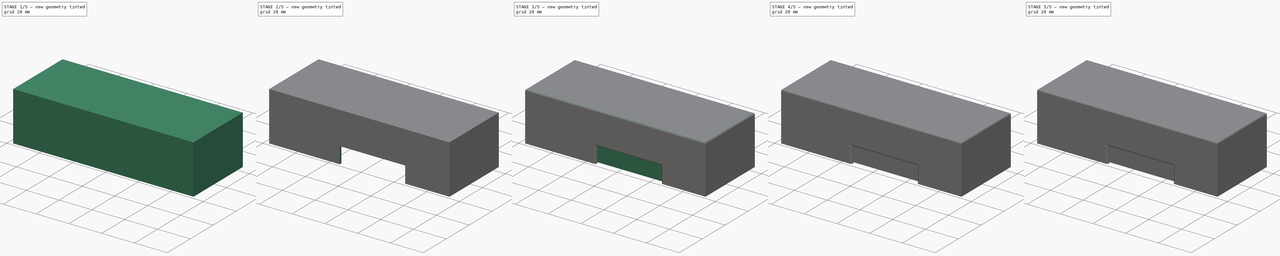
[diagram: build sequence overview — one tinted view per stage of 5, left to right]
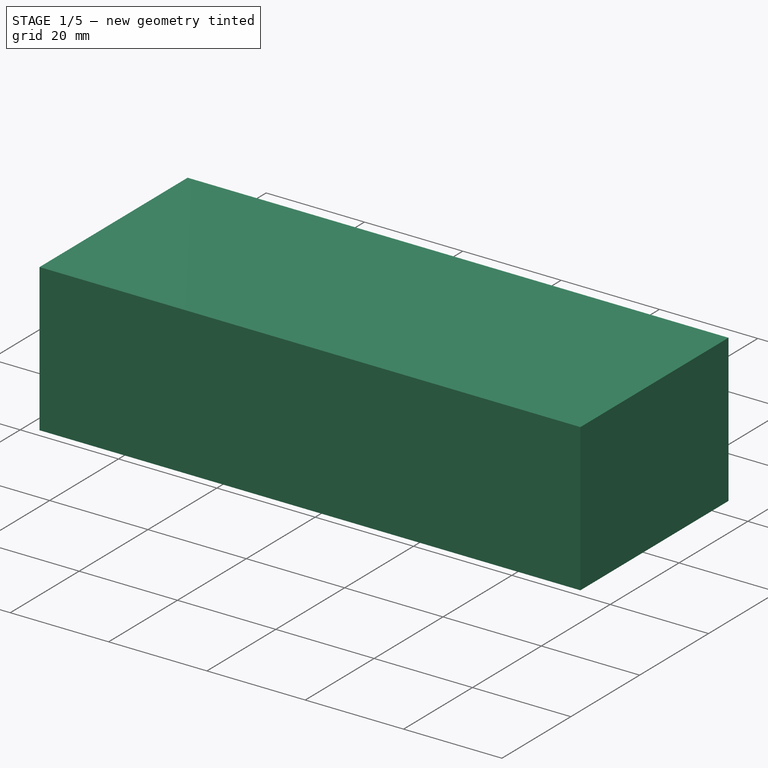
[diagram: stage 1 of 5 — iso view after this stage's code; geometry added in this stage tinted green]
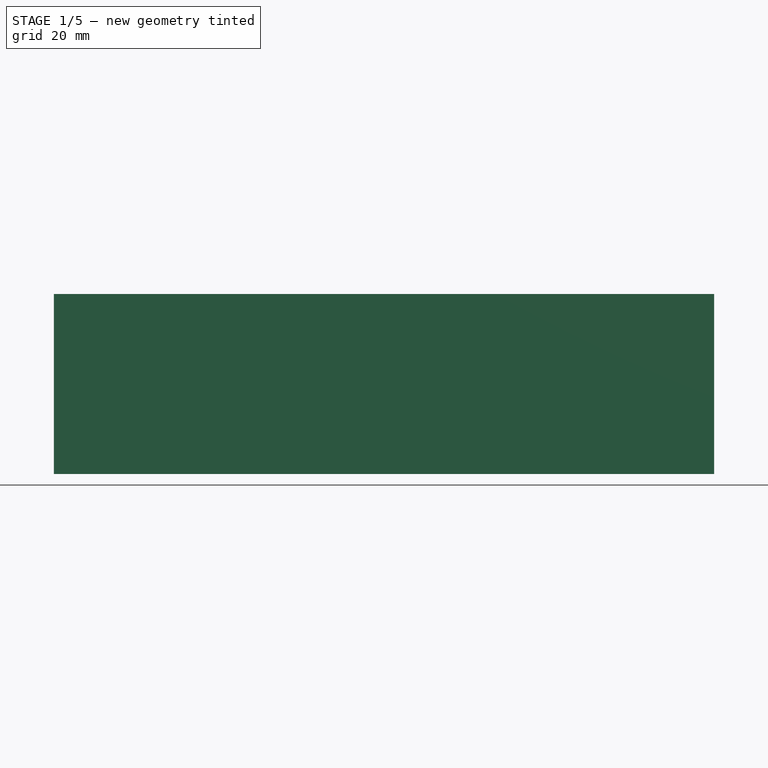
[diagram: stage 1 of 5 — front view after this stage's code; geometry added in this stage tinted green]
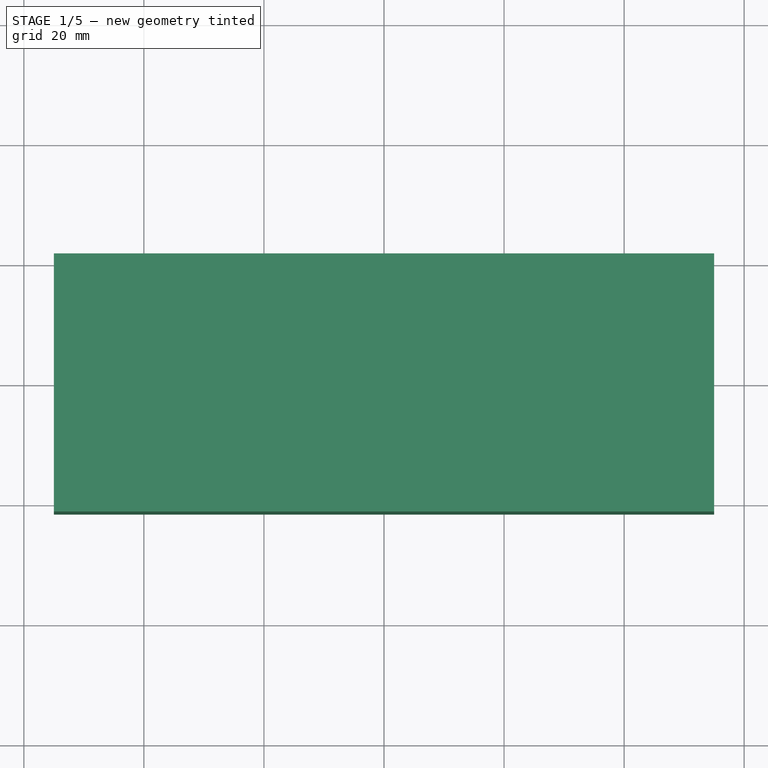
[diagram: stage 1 of 5 — top view after this stage's code; geometry added in this stage tinted green]
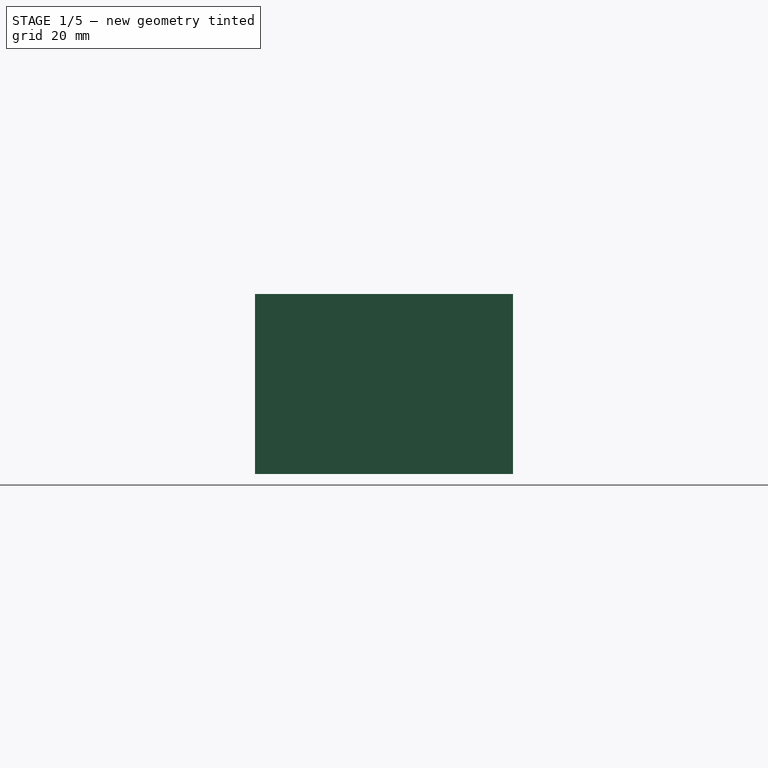
[diagram: stage 1 of 5 — right view after this stage's code; geometry added in this stage tinted green]
FCSTD DOCUMENT  (FreeCAD 0.19R24028 (Git))
Label: TBeam-Case
License: Creative Commons Attribution
LicenseURL: http://creativecommons.org/licenses/by/4.0/
objects: Sketcher::SketchObject×13, PartDesign::Pocket×8, PartDesign::Pad×5, PartDesign::Fillet×3, PartDesign::Body×2, PartDesign::Chamfer×1
note: 49 computed .brp shape members not serialized (recipe doc carries the construction recipe); baked Part::Feature solids carry a one-line shape summary decoded from their .brp

FEATURE [PartDesign::Body] Body  label="LowerHalf"
  Group = -> [Sketch,Pad,Sketch001,Pocket,Sketch002,Pad001,Sketch003,Pocket001,Sketch004,Pocket002,Sketch005,Pocket003,Sketch006,Pocket004,Fillet]
  Origin = -> Origin
  Placement = pos=(0,0,-14) rot=(0,0,1;0rad)
  Tip = -> Fillet
FEATURE [Sketcher::SketchObject] Sketch007
  FullyConstrained = true
  MapMode = 5
  Support = -> [XY_Plane001]
  sketch-geometry (4):
    g0: LineSegment StartX=-55 StartY=21.5 StartZ=0 EndX=55 EndY=21.5 EndZ=0
    g1: LineSegment StartX=55 StartY=21.5 StartZ=0 EndX=55 EndY=-21.5 EndZ=0
    g2: LineSegment StartX=55 StartY=-21.5 StartZ=0 EndX=-55 EndY=-21.5 EndZ=0
    g3: LineSegment StartX=-55 StartY=-21.5 StartZ=0 EndX=-55 EndY=21.5 EndZ=0
  constraints (11):
    c: Coincident(g0,g1)
    c: Coincident(g1,g2)
    c: Coincident(g2,g3)
    c: Coincident(g3,g0)
    c: Horizontal(g0)
    c: Horizontal(g2)
    c: Vertical(g1)
    c: Vertical(g3)
    c: Distance(g0) = 110
    c: Distance(g3) = 43
    c: Symmetric(g0,g1,g-1)
FEATURE [PartDesign::Pad] Pad002
  Direction = (1,1,1)
  Length = 30
  Length2 = 100
  Profile = -> Sketch007
  Type = 0
FEATURE [Sketcher::SketchObject] Sketch008
  ExternalGeometry = -> [Pad002]
  FullyConstrained = true
  MapMode = 5
  Placement = pos=(0,0,0) rot=(1,0,0;3.14159rad)
  Support = -> [Pad002]
  sketch-geometry (4):
    g0: LineSegment StartX=-53.5 StartY=20 StartZ=0 EndX=53.5 EndY=20 EndZ=0
    g1: LineSegment StartX=53.5 StartY=20 StartZ=0 EndX=53.5 EndY=-20 EndZ=0
    g2: LineSegment StartX=53.5 StartY=-20 StartZ=0 EndX=-53.5 EndY=-20 EndZ=0
    g3: LineSegment StartX=-53.5 StartY=-20 StartZ=0 EndX=-53.5 EndY=20 EndZ=0
  constraints (12):
    c: Coincident(g0,g1)
    c: Coincident(g1,g2)
    c: Coincident(g2,g3)
    c: Coincident(g3,g0)
    c: Horizontal(g0)
    c: Horizontal(g2)
    c: Vertical(g1)
    c: Vertical(g3)
    c: DistanceX(g0,g-4) = 1.5
    c: DistanceY(g0,g-4) = 1.5
    c: DistanceX(g-3,g2) = 1.5
    c: DistanceY(g-3,g2) = 1.5
FEATURE [PartDesign::Pocket] Pocket005
  BaseFeature = -> Pad002
  Length = 5
  Length2 = 100
  Offset = -1.5
  Profile = -> Sketch008
  Type = 2
FEATURE [Sketcher::SketchObject] Sketch009
  FullyConstrained = true
  MapMode = 5
  Placement = pos=(-53.5,0,0) rot=(0.57735,0.57735,0.57735;2.0944rad)
  Support = -> [Pocket005]
  sketch-geometry (4):
    g0: LineSegment StartX=-9 StartY=3 StartZ=0 EndX=9 EndY=3 EndZ=0
    g1: LineSegment StartX=9 StartY=3 StartZ=0 EndX=9 EndY=0 EndZ=0
    g2: LineSegment StartX=9 StartY=0 StartZ=0 EndX=-9 EndY=0 EndZ=0
    g3: LineSegment StartX=-9 StartY=0 StartZ=0 EndX=-9 EndY=3 EndZ=0
  constraints (11):
    c: Coincident(g0,g1)
    c: Coincident(g1,g2)
    c: Coincident(g2,g3)
    c: Coincident(g3,g0)
    c: Horizontal(g0)
    c: Vertical(g1)
    c: Vertical(g3)
    c: Distance(g0) = 18
    c: Distance(g1) = 3
    c: Symmetric(g2,g1,g-2)
    c: Horizontal(g2,g-1)
FEATURE [PartDesign::Pad] Pad003  label="Raste Rechts"
  BaseFeature = -> Pocket005
  Direction = (1,1,1)
  Length = 2
  Length2 = 100
  Profile = -> Sketch009
  Type = 0
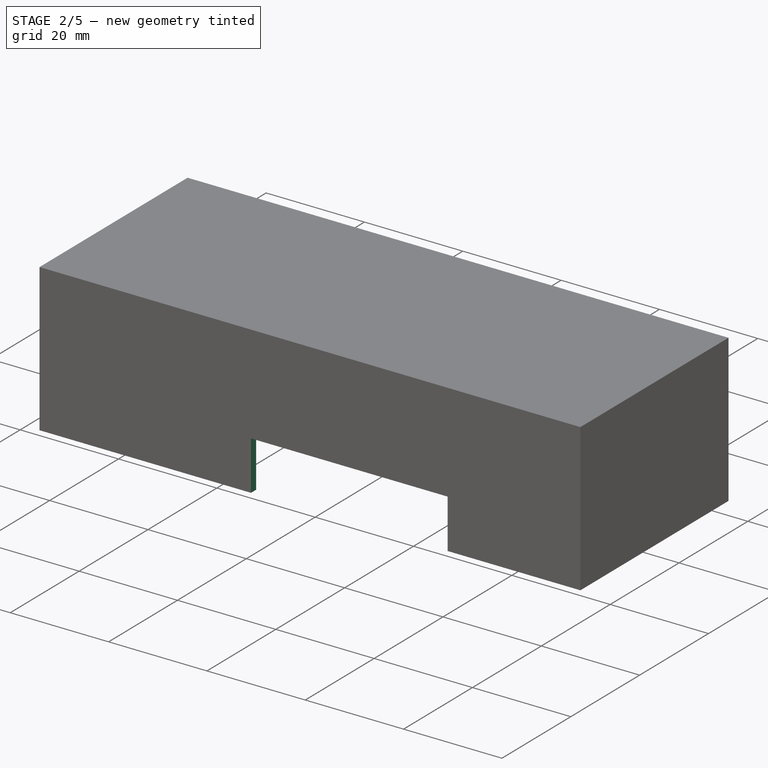
[diagram: stage 2 of 5 — iso view after this stage's code; geometry added in this stage tinted green]
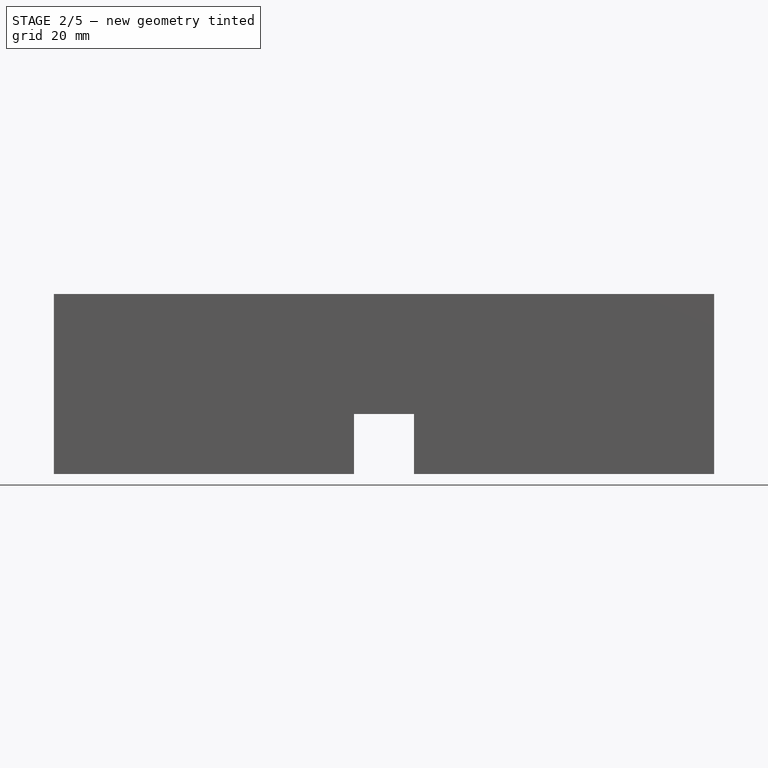
[diagram: stage 2 of 5 — front view after this stage's code; geometry added in this stage tinted green]
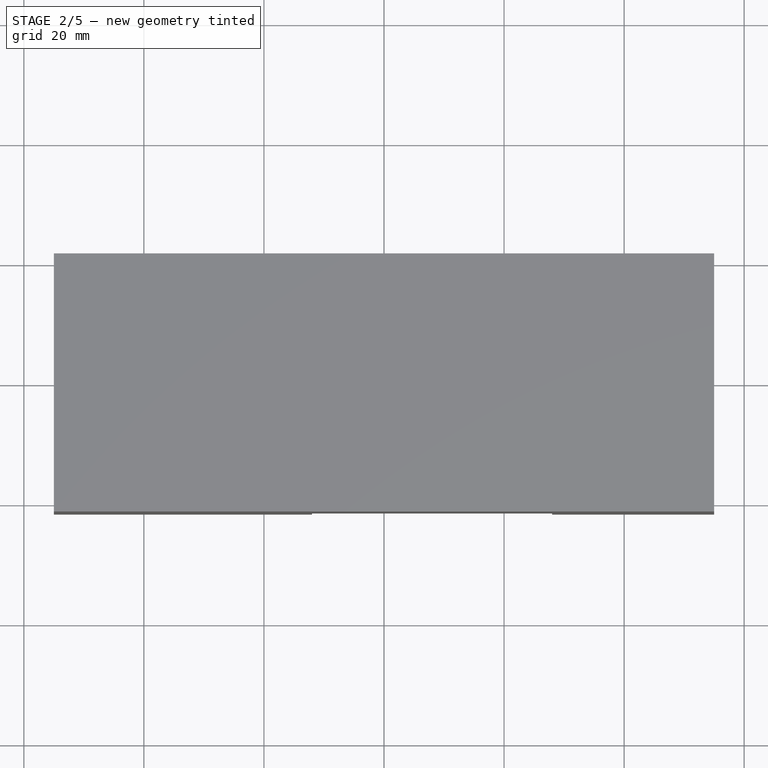
[diagram: stage 2 of 5 — top view after this stage's code; geometry added in this stage tinted green]
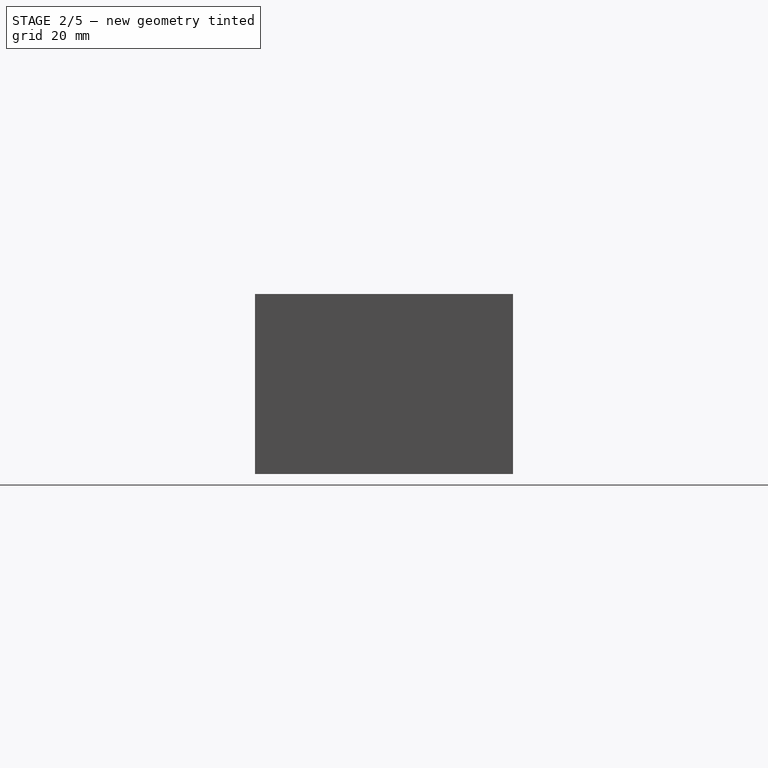
[diagram: stage 2 of 5 — right view after this stage's code; geometry added in this stage tinted green]
FEATURE [Sketcher::SketchObject] Sketch010
  FullyConstrained = true
  MapMode = 5
  Placement = pos=(53.5,0,0) rot=(0.57735,-0.57735,-0.57735;2.0944rad)
  Support = -> [Pad003]
  sketch-geometry (4):
    g0: LineSegment StartX=-9 StartY=0 StartZ=0 EndX=9 EndY=0 EndZ=0
    g1: LineSegment StartX=9 StartY=0 StartZ=0 EndX=9 EndY=3 EndZ=0
    g2: LineSegment StartX=9 StartY=3 StartZ=0 EndX=-9 EndY=3 EndZ=0
    g3: LineSegment StartX=-9 StartY=3 StartZ=0 EndX=-9 EndY=0 EndZ=0
  constraints (11):
    c: Coincident(g0,g1)
    c: Coincident(g1,g2)
    c: Coincident(g2,g3)
    c: Coincident(g3,g0)
    c: Horizontal(g2)
    c: Vertical(g1)
    c: Vertical(g3)
    c: Distance(g2) = 18
    c: Distance(g3) = 3
    c: Symmetric(g0,g0,g-2)
    c: Horizontal(g0,g-1)
FEATURE [PartDesign::Pad] Pad004  label="Raste Links"
  BaseFeature = -> Pad003
  Direction = (1,1,1)
  Length = 2
  Length2 = 100
  Profile = -> Sketch010
  Type = 0
FEATURE [Sketcher::SketchObject] Sketch011
  ExternalGeometry = -> [Pad004]
  FullyConstrained = true
  MapMode = 5
  Placement = pos=(0,-21.5,0) rot=(1,0,0;1.5708rad)
  Support = -> [Pad004]
  sketch-geometry (4):
    g0: LineSegment StartX=-12 StartY=10 StartZ=0 EndX=28 EndY=10 EndZ=0
    g1: LineSegment StartX=28 StartY=10 StartZ=0 EndX=28 EndY=0 EndZ=0
    g2: LineSegment StartX=28 StartY=0 StartZ=0 EndX=-12 EndY=0 EndZ=0
    g3: LineSegment StartX=-12 StartY=0 StartZ=0 EndX=-12 EndY=10 EndZ=0
  constraints (12):
    c: Coincident(g0,g1)
    c: Coincident(g1,g2)
    c: Coincident(g2,g3)
    c: Coincident(g3,g0)
    c: Horizontal(g0)
    c: Horizontal(g2)
    c: Vertical(g1)
    c: Vertical(g3)
    c: Distance(g0) = 40
    c: PointOnObject(g2,g-1)
    c: Distance(g1) = 10
    c: DistanceX(g1,g-3) = 27
FEATURE [PartDesign::Pocket] Pocket006  label="USB Loch"
  BaseFeature = -> Pad004
  Length = 5
  Length2 = 100
  Profile = -> Sketch011
  Type = 2
FEATURE [Sketcher::SketchObject] Sketch012
  ExternalGeometry = -> [Pocket006]
  FullyConstrained = true
  MapMode = 5
  Placement = pos=(0,21.5,0) rot=(0,0.707107,0.707107;3.14159rad)
  Support = -> [Pocket006]
  sketch-geometry (4):
    g0: LineSegment StartX=-5 StartY=0 StartZ=0 EndX=5 EndY=0 EndZ=0
    g1: LineSegment StartX=5 StartY=0 StartZ=0 EndX=5 EndY=20 EndZ=0
    g2: LineSegment StartX=5 StartY=20 StartZ=0 EndX=-5 EndY=20 EndZ=0
    g3: LineSegment StartX=-5 StartY=20 StartZ=0 EndX=-5 EndY=0 EndZ=0
  constraints (11):
    c: Coincident(g0,g1)
    c: Coincident(g1,g2)
    c: Coincident(g2,g3)
    c: Coincident(g3,g0)
    c: Horizontal(g2)
    c: Vertical(g1)
    c: Vertical(g3)
    c: PointOnObject(g0,g-1)
    c: DistanceY(g1,g-3) = 10
    c: Distance(g2) = 10
    c: Symmetric(g0,g0,g-2)
FEATURE [PartDesign::Pocket] Pocket007  label="Antennenloch"
  BaseFeature = -> Pocket006
  Length = 5
  Length2 = 100
  Profile = -> Sketch012
  Type = 2
FEATURE [PartDesign::Chamfer] Chamfer
  Angle = 45
  Base = -> Pocket007 [Edge63,Edge54]
  BaseFeature = -> Pocket007
  ChamferType = 0
  FlipDirection = false
  Size = 1.5
  Size2 = 1
  SupportTransform = false
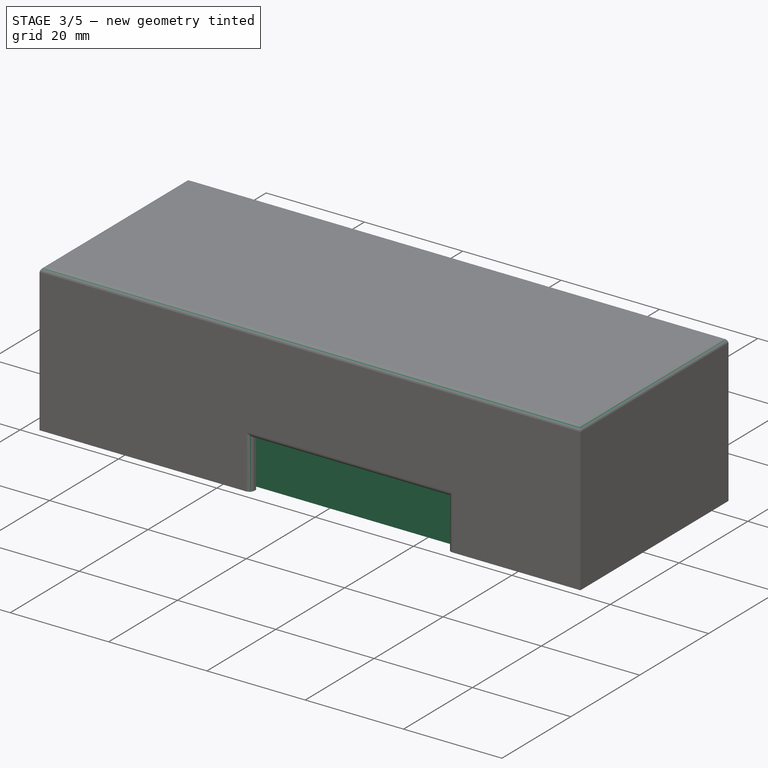
[diagram: stage 3 of 5 — iso view after this stage's code; geometry added in this stage tinted green]
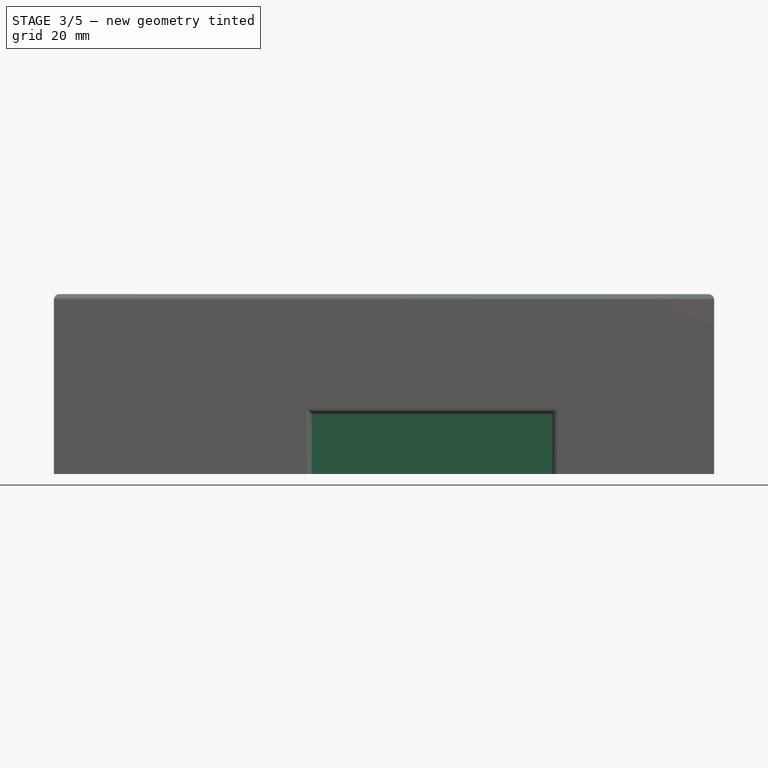
[diagram: stage 3 of 5 — front view after this stage's code; geometry added in this stage tinted green]
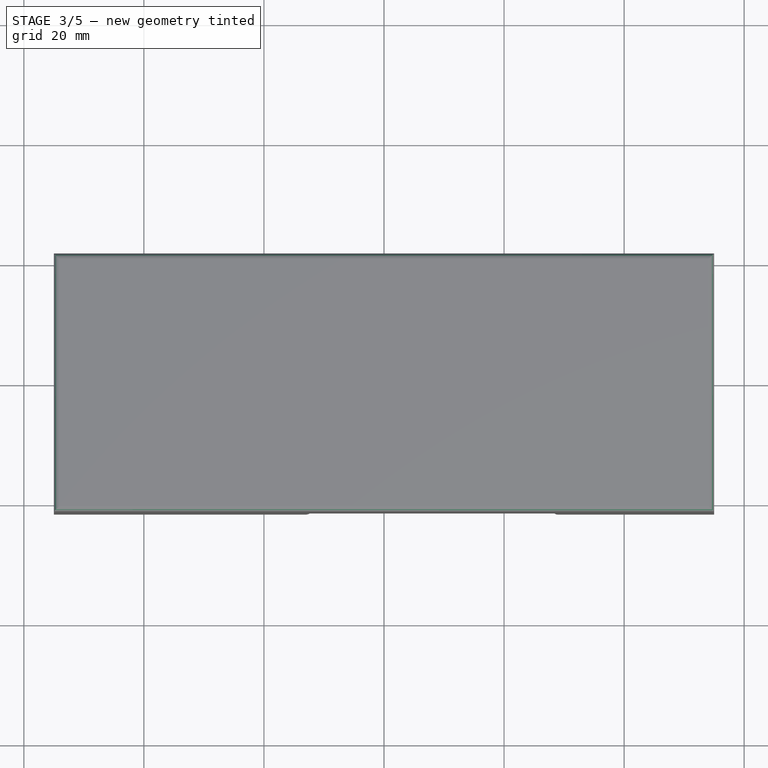
[diagram: stage 3 of 5 — top view after this stage's code; geometry added in this stage tinted green]
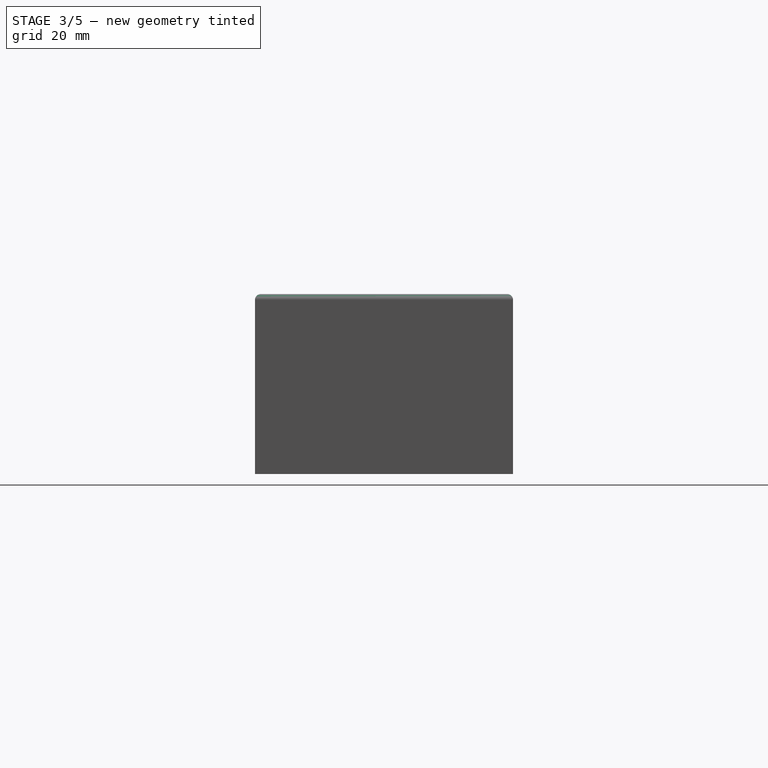
[diagram: stage 3 of 5 — right view after this stage's code; geometry added in this stage tinted green]
FEATURE [Sketcher::SketchObject] Sketch
  FullyConstrained = true
  MapMode = 5
  Support = -> [XY_Plane]
  sketch-geometry (4):
    g0: LineSegment StartX=-52.5 StartY=19 StartZ=0 EndX=52.5 EndY=19 EndZ=0
    g1: LineSegment StartX=52.5 StartY=19 StartZ=0 EndX=52.5 EndY=-19 EndZ=0
    g2: LineSegment StartX=52.5 StartY=-19 StartZ=0 EndX=-52.5 EndY=-19 EndZ=0
    g3: LineSegment StartX=-52.5 StartY=-19 StartZ=0 EndX=-52.5 EndY=19 EndZ=0
  constraints (11):
    c: Coincident(g0,g1)
    c: Coincident(g1,g2)
    c: Coincident(g2,g3)
    c: Coincident(g3,g0)
    c: Horizontal(g0)
    c: Horizontal(g2)
    c: Vertical(g1)
    c: Vertical(g3)
    c: Distance(g1) = 38
    c: Distance(g0) = 105
    c: Symmetric(g0,g1,g-1)
FEATURE [PartDesign::Pad] Pad
  Direction = (1,1,1)
  Length = 25
  Length2 = 100
  Profile = -> Sketch
  Type = 0
FEATURE [PartDesign::Fillet] Fillet001
  Base = -> Chamfer [Face20]
  BaseFeature = -> Chamfer
  Radius = 1
  SupportTransform = false
FEATURE [PartDesign::Fillet] Fillet002
  Base = -> Fillet001 [Edge7,Edge8,Edge5]
  BaseFeature = -> Fillet001
  Radius = 1
  SupportTransform = false
FEATURE [PartDesign::Body] Body001  label="UpperHalf"
  Group = -> [Sketch007,Pad002,Sketch008,Pocket005,Sketch009,Pad003,Sketch010,Pad004,Sketch011,Pocket006,Sketch012,Pocket007,Chamfer,Fillet001,Fillet002]
  Origin = -> Origin001
  Tip = -> Fillet002
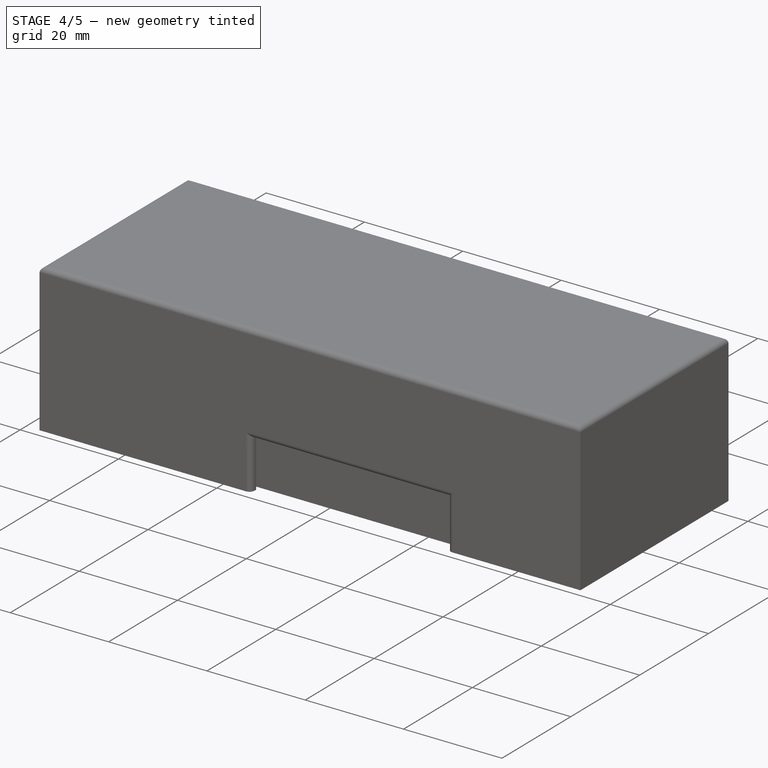
[diagram: stage 4 of 5 — iso view after this stage's code; geometry added in this stage tinted green]
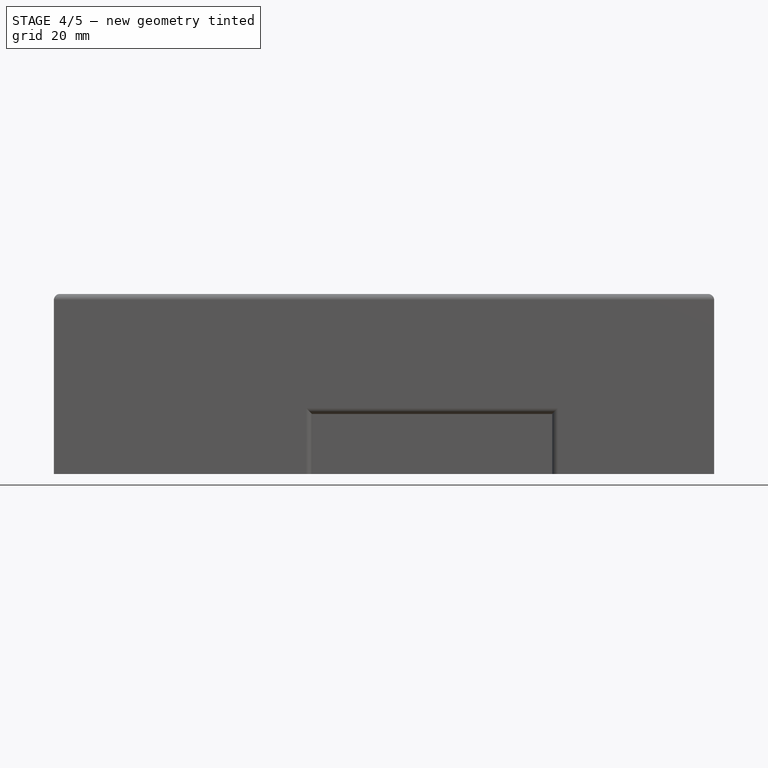
[diagram: stage 4 of 5 — front view after this stage's code; geometry added in this stage tinted green]
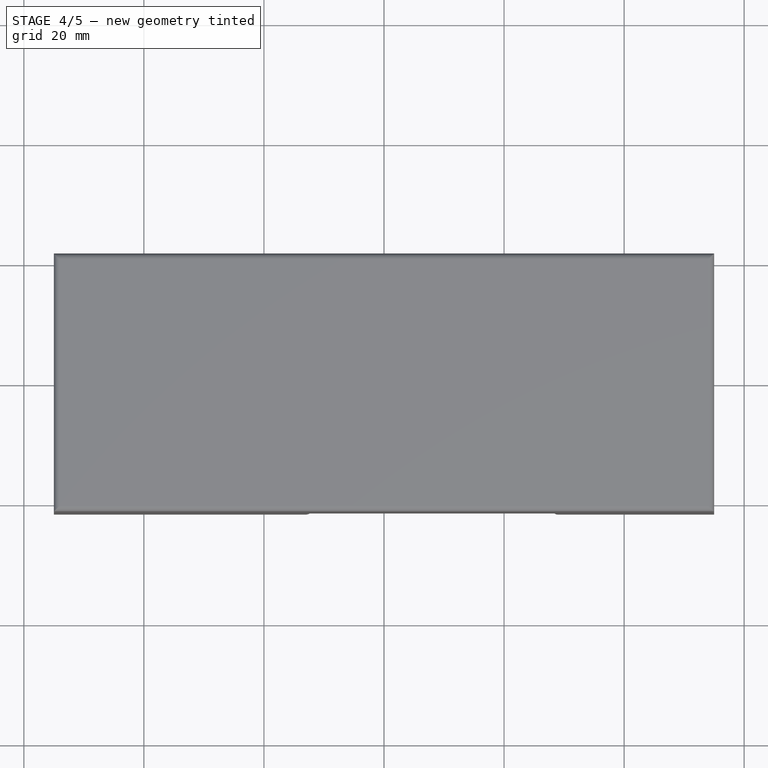
[diagram: stage 4 of 5 — top view after this stage's code; geometry added in this stage tinted green]
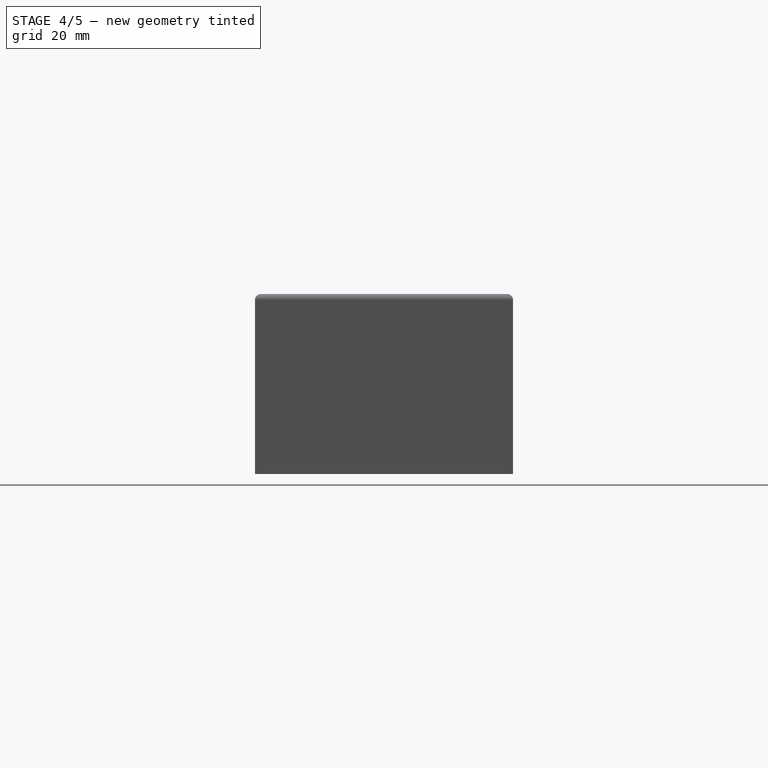
[diagram: stage 4 of 5 — right view after this stage's code; geometry added in this stage tinted green]
FEATURE [Sketcher::SketchObject] Sketch001
  ExternalGeometry = -> [Pad]
  FullyConstrained = true
  MapMode = 5
  Placement = pos=(0,0,25) rot=(0,0,1;0rad)
  Support = -> [Pad]
  sketch-geometry (4):
    g0: LineSegment StartX=-51 StartY=17.5 StartZ=0 EndX=51 EndY=17.5 EndZ=0
    g1: LineSegment StartX=51 StartY=17.5 StartZ=0 EndX=51 EndY=-17.5 EndZ=0
    g2: LineSegment StartX=51 StartY=-17.5 StartZ=0 EndX=-51 EndY=-17.5 EndZ=0
    g3: LineSegment StartX=-51 StartY=-17.5 StartZ=0 EndX=-51 EndY=17.5 EndZ=0
  constraints (14):
    c: Coincident(g0,g1)
    c: Coincident(g1,g2)
    c: Coincident(g2,g3)
    c: Coincident(g3,g0)
    c: Horizontal(g0)
    c: Horizontal(g2)
    c: Vertical(g1)
    c: Vertical(g3)
    c: DistanceX(g0,g-4) = 1.5
    c: DistanceY(g0,g-4) = 1.5
    c: DistanceX(g-3,g2) = 1.5
    c: DistanceY(g-3,g2) = 1.5
    c: Distance(g0) = 102
    c: Distance(g1) = 35
FEATURE [PartDesign::Pocket] Pocket
  BaseFeature = -> Pad
  Length = 5
  Length2 = 100
  Offset = -1.5
  Profile = -> Sketch001
  Type = 2
FEATURE [Sketcher::SketchObject] Sketch002
  ExternalGeometry = -> [Pocket]
  FullyConstrained = true
  MapMode = 5
  Placement = pos=(0,0,1.5) rot=(0,0,1;0rad)
  Support = -> [Pocket]
  sketch-geometry (8):
    g0: LineSegment StartX=-42.5 StartY=12.5 StartZ=0 EndX=-41 EndY=12.5 EndZ=0
    g1: LineSegment StartX=-41 StartY=12.5 StartZ=0 EndX=-41 EndY=-12.5 EndZ=0
    g2: LineSegment StartX=-41 StartY=-12.5 StartZ=0 EndX=-42.5 EndY=-12.5 EndZ=0
    g3: LineSegment StartX=-42.5 StartY=-12.5 StartZ=0 EndX=-42.5 EndY=12.5 EndZ=0
    g4: LineSegment StartX=41 StartY=12.5 StartZ=0 EndX=42.5 EndY=12.5 EndZ=0
    g5: LineSegment StartX=42.5 StartY=12.5 StartZ=0 EndX=42.5 EndY=-12.5 EndZ=0
    g6: LineSegment StartX=42.5 StartY=-12.5 StartZ=0 EndX=41 EndY=-12.5 EndZ=0
    g7: LineSegment StartX=41 StartY=-12.5 StartZ=0 EndX=41 EndY=12.5 EndZ=0
  constraints (22):
    c: Coincident(g0,g1)
    c: Coincident(g1,g2)
    c: Coincident(g2,g3)
    c: Coincident(g3,g0)
    c: Horizontal(g0)
    c: Horizontal(g2)
    c: Vertical(g3)
    c: Coincident(g4,g5)
    c: Coincident(g5,g6)
    c: Coincident(g6,g7)
    c: Coincident(g7,g4)
    c: Horizontal(g4)
    c: Horizontal(g6)
    c: Vertical(g5)
    c: Distance(g0) = 1.5
    c: Distance(g4) = 1.5
    c: Distance(g1) = 25
    c: Distance(g5) = 25
    c: DistanceX(g4,g-4) = 10
    c: DistanceX(g-3,g0) = 10
    c: Symmetric(g1,g0,g-1)
    c: Symmetric(g4,g6,g-1)
FEATURE [PartDesign::Pad] Pad001
  BaseFeature = -> Pocket
  Direction = (1,1,1)
  Length = 15
  Length2 = 100
  Profile = -> Sketch002
  Type = 0
FEATURE [Sketcher::SketchObject] Sketch003
  ExternalGeometry = -> [Pad001]
  FullyConstrained = true
  MapMode = 5
  Placement = pos=(0,19,0) rot=(0,0.707107,0.707107;3.14159rad)
  Support = -> [Pad001]
  sketch-geometry (4):
    g0: LineSegment StartX=-5 StartY=25 StartZ=0 EndX=5 EndY=25 EndZ=0
    g1: LineSegment StartX=5 StartY=25 StartZ=0 EndX=5 EndY=20 EndZ=0
    g2: LineSegment StartX=5 StartY=20 StartZ=0 EndX=-5 EndY=20 EndZ=0
    g3: LineSegment StartX=-5 StartY=20 StartZ=0 EndX=-5 EndY=25 EndZ=0
  constraints (11):
    c: Coincident(g0,g1)
    c: Coincident(g1,g2)
    c: Coincident(g2,g3)
    c: Coincident(g3,g0)
    c: Horizontal(g2)
    c: Vertical(g1)
    c: Vertical(g3)
    c: Distance(g2) = 10
    c: PointOnObject(g0,g-3)
    c: Symmetric(g0,g0,g-2)
    c: DistanceY(g-1,g2) = 20
FEATURE [PartDesign::Pocket] Pocket001  label="Loch Antenne"
  BaseFeature = -> Pad001
  Length = 5
  Length2 = 100
  Profile = -> Sketch003
  Type = 2
FEATURE [Sketcher::SketchObject] Sketch004
  ExternalGeometry = -> [Pocket001]
  FullyConstrained = true
  MapMode = 5
  Placement = pos=(0,-19,0) rot=(1,0,0;1.5708rad)
  Support = -> [Pocket001]
  sketch-geometry (4):
    g0: LineSegment StartX=-12.5 StartY=25 StartZ=0 EndX=27.5 EndY=25 EndZ=0
    g1: LineSegment StartX=27.5 StartY=25 StartZ=0 EndX=27.5 EndY=20 EndZ=0
    g2: LineSegment StartX=27.5 StartY=20 StartZ=0 EndX=-12.5 EndY=20 EndZ=0
    g3: LineSegment StartX=-12.5 StartY=20 StartZ=0 EndX=-12.5 EndY=25 EndZ=0
  constraints (12):
    c: Coincident(g0,g1)
    c: Coincident(g1,g2)
    c: Horizontal(g0)
    c: Horizontal(g2)
    c: Vertical(g1)
    c: Distance(g2) = 40
    c: Horizontal(g0,g-3)
    c: DistanceX(g0,g-3) = 25
    c: Distance(g1) = 5
    c: Vertical(g3)
    c: Coincident(g2,g3)
    c: Coincident(g0,g3)
FEATURE [PartDesign::Pocket] Pocket002  label="USB-Loch"
  BaseFeature = -> Pocket001
  Length = 5
  Length2 = 100
  Profile = -> Sketch004
  Type = 2
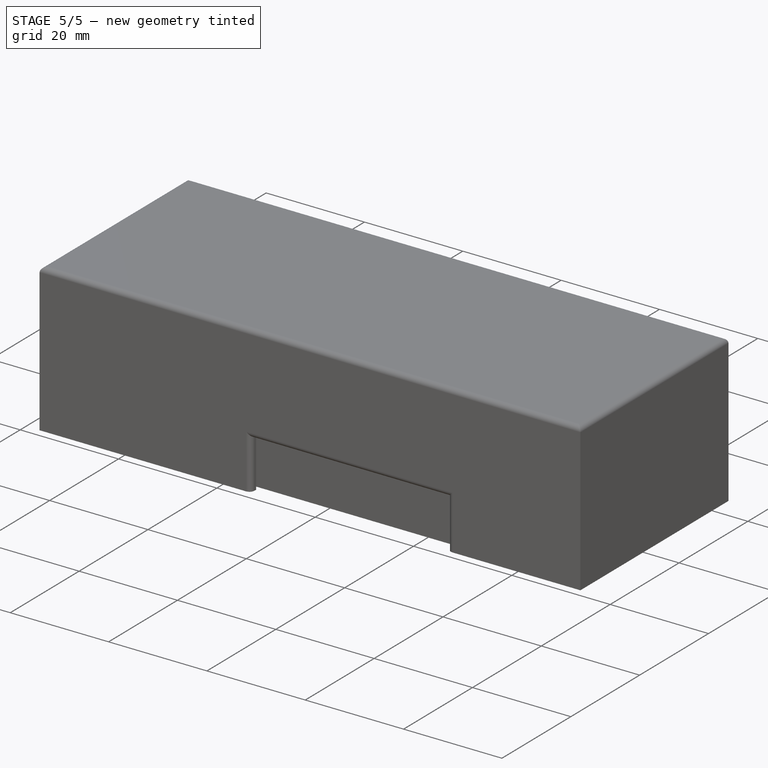
[diagram: stage 5 of 5 — iso view after this stage's code; geometry added in this stage tinted green]
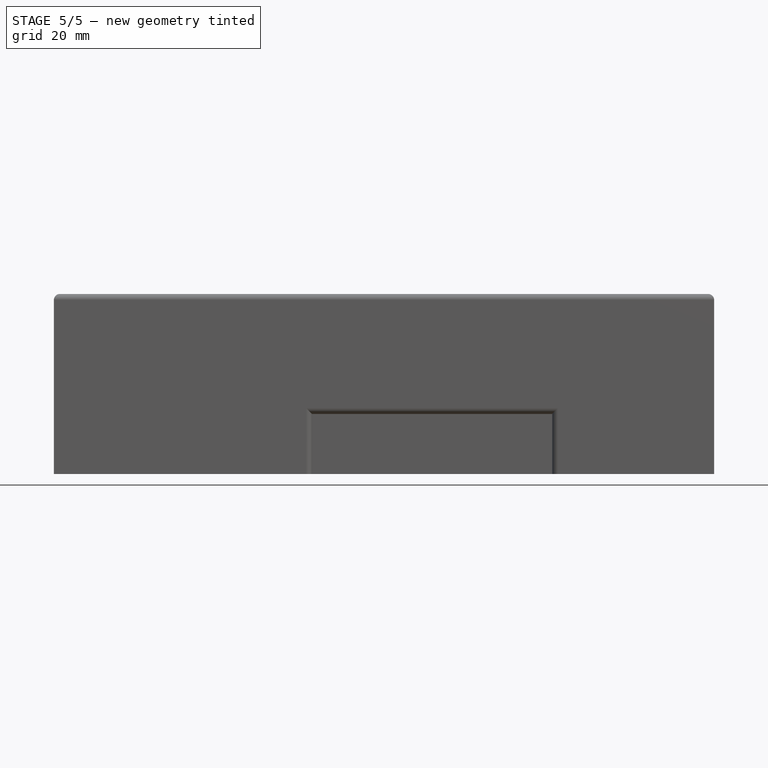
[diagram: stage 5 of 5 — front view after this stage's code; geometry added in this stage tinted green]
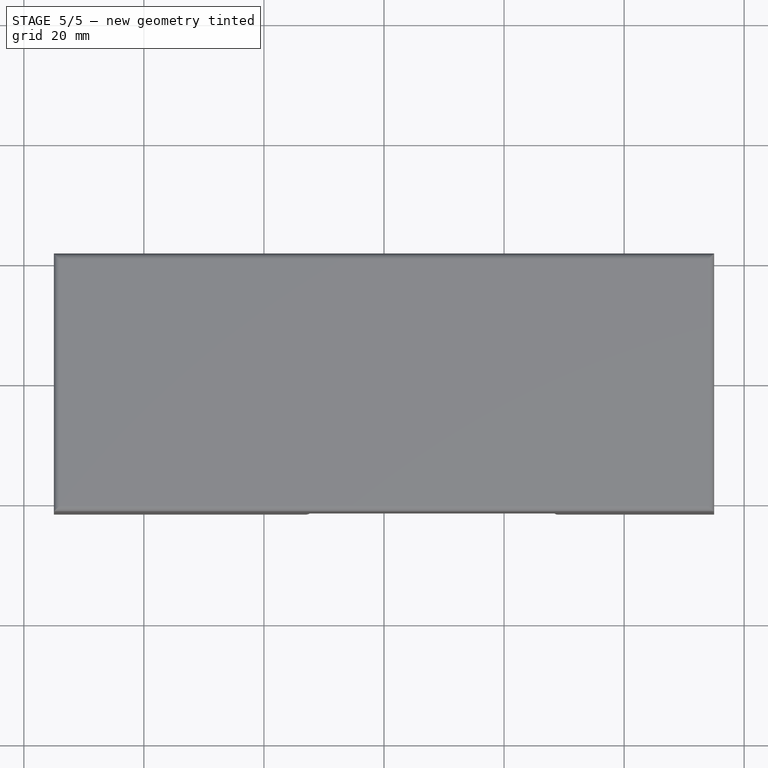
[diagram: stage 5 of 5 — top view after this stage's code; geometry added in this stage tinted green]
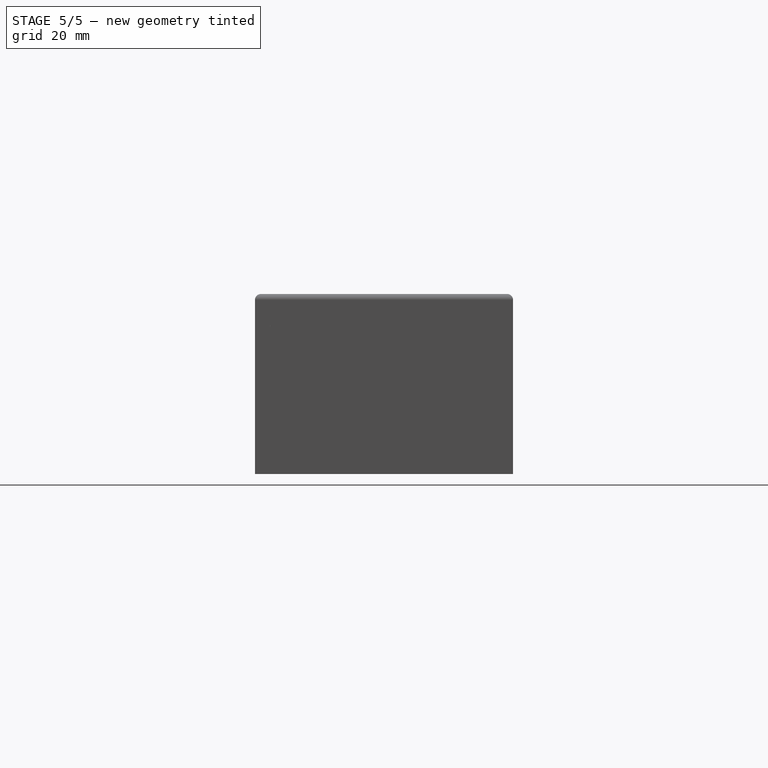
[diagram: stage 5 of 5 — right view after this stage's code; geometry added in this stage tinted green]
FEATURE [Sketcher::SketchObject] Sketch005
  ExternalGeometry = -> [Pocket002]
  FullyConstrained = true
  MapMode = 5
  Placement = pos=(52.5,0,0) rot=(0.57735,0.57735,0.57735;2.0944rad)
  Support = -> [Pocket002]
  sketch-geometry (4):
    g0: LineSegment StartX=-10 StartY=20 StartZ=0 EndX=10 EndY=20 EndZ=0
    g1: LineSegment StartX=10 StartY=20 StartZ=0 EndX=10 EndY=18 EndZ=0
    g2: LineSegment StartX=10 StartY=18 StartZ=0 EndX=-10 EndY=18 EndZ=0
    g3: LineSegment StartX=-10 StartY=18 StartZ=0 EndX=-10 EndY=20 EndZ=0
  constraints (11):
    c: Coincident(g0,g1)
    c: Coincident(g1,g2)
    c: Coincident(g2,g3)
    c: Coincident(g3,g0)
    c: Horizontal(g2)
    c: Vertical(g1)
    c: Vertical(g3)
    c: Distance(g1) = 2
    c: Distance(g0) = 20
    c: Symmetric(g0,g0,g-2)
    c: DistanceY(g0,g-3) = 5
FEATURE [PartDesign::Pocket] Pocket003  label="Einraster Links"
  BaseFeature = -> Pocket002
  Length = 1
  Length2 = 100
  Profile = -> Sketch005
  Type = 0
FEATURE [Sketcher::SketchObject] Sketch006
  ExternalGeometry = -> [Pocket003]
  FullyConstrained = true
  MapMode = 5
  Placement = pos=(-52.5,0,0) rot=(0.57735,-0.57735,-0.57735;2.0944rad)
  Support = -> [Pocket003]
  sketch-geometry (4):
    g0: LineSegment StartX=-10 StartY=20 StartZ=0 EndX=10 EndY=20 EndZ=0
    g1: LineSegment StartX=10 StartY=20 StartZ=0 EndX=10 EndY=18 EndZ=0
    g2: LineSegment StartX=10 StartY=18 StartZ=0 EndX=-10 EndY=18 EndZ=0
    g3: LineSegment StartX=-10 StartY=18 StartZ=0 EndX=-10 EndY=20 EndZ=0
  constraints (11):
    c: Coincident(g0,g1)
    c: Coincident(g1,g2)
    c: Coincident(g2,g3)
    c: Coincident(g3,g0)
    c: Horizontal(g2)
    c: Vertical(g1)
    c: Vertical(g3)
    c: Distance(g1) = 2
    c: Distance(g0) = 20
    c: Symmetric(g0,g0,g-2)
    c: DistanceY(g0,g-3) = 5
FEATURE [PartDesign::Pocket] Pocket004  label="Einraster Rechts"
  BaseFeature = -> Pocket003
  Length = 1
  Length2 = 100
  Profile = -> Sketch006
  Type = 0
FEATURE [PartDesign::Fillet] Fillet
  Base = -> Pocket004 [Face5,Face6,Face25,Face9,Face19,Face24,Face7,Face8,Face37,Face38]
  BaseFeature = -> Pocket004
  Radius = 0.5
  SupportTransform = false
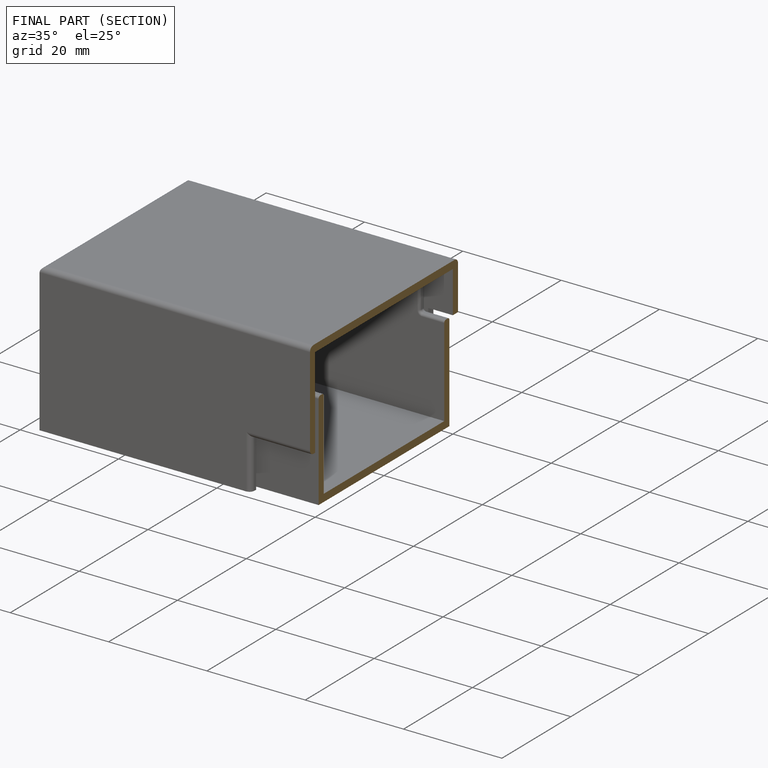
[diagram: finished part — half-section view (interior)]
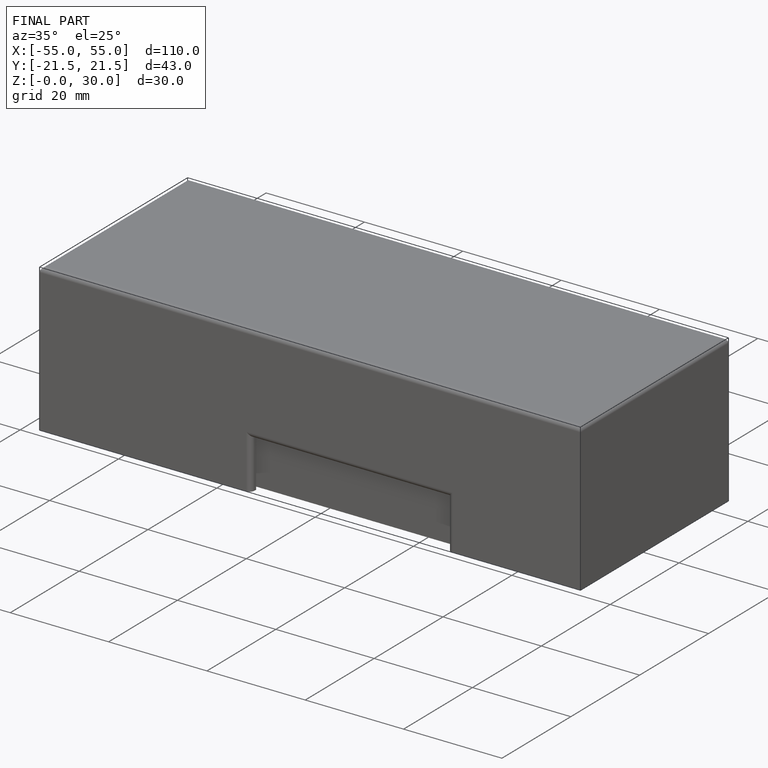
[diagram: finished part — iso view with bounding-box wireframe]
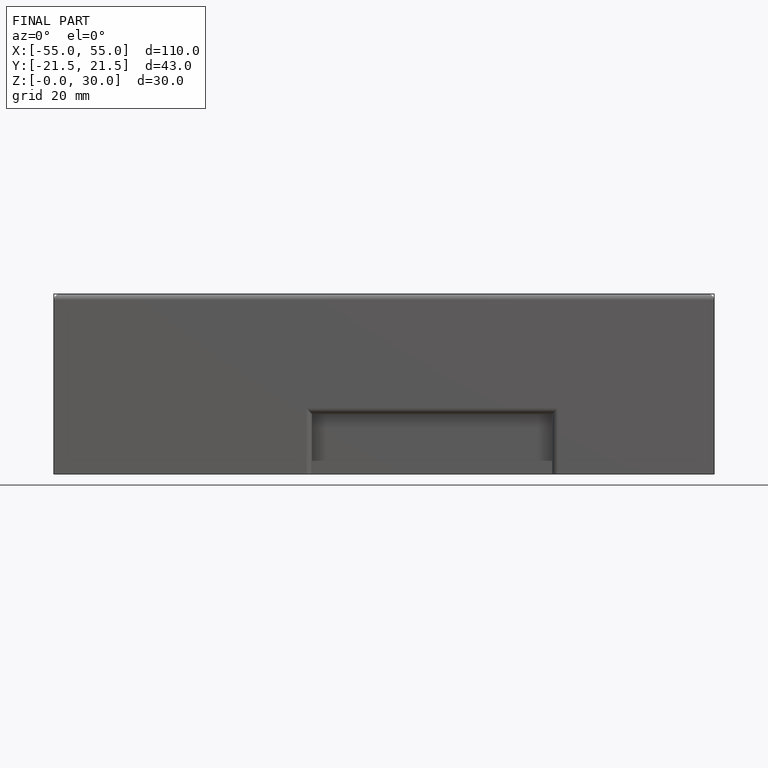
[diagram: finished part — front view with bounding-box wireframe]
